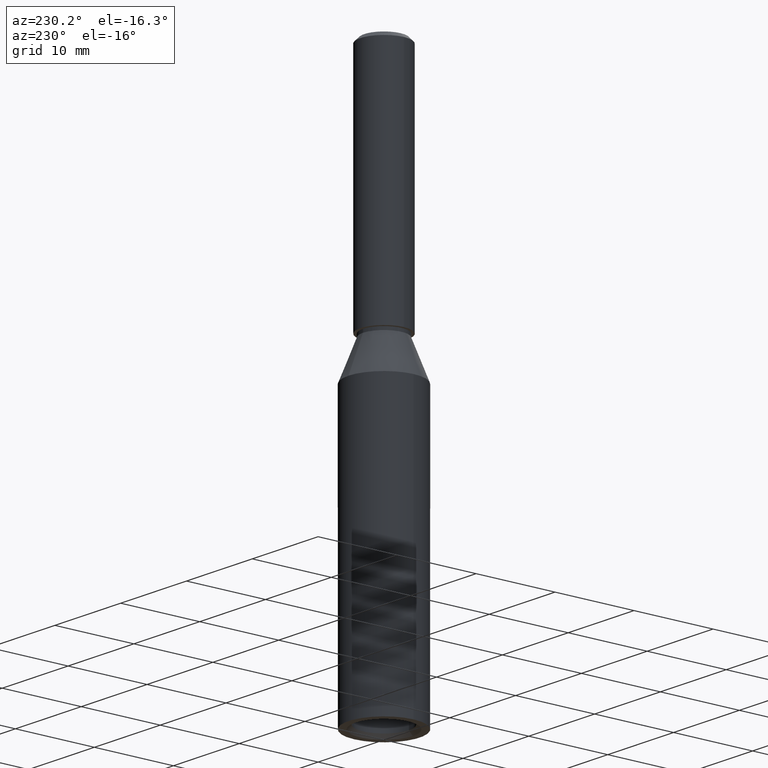
[diagram: clean part render]
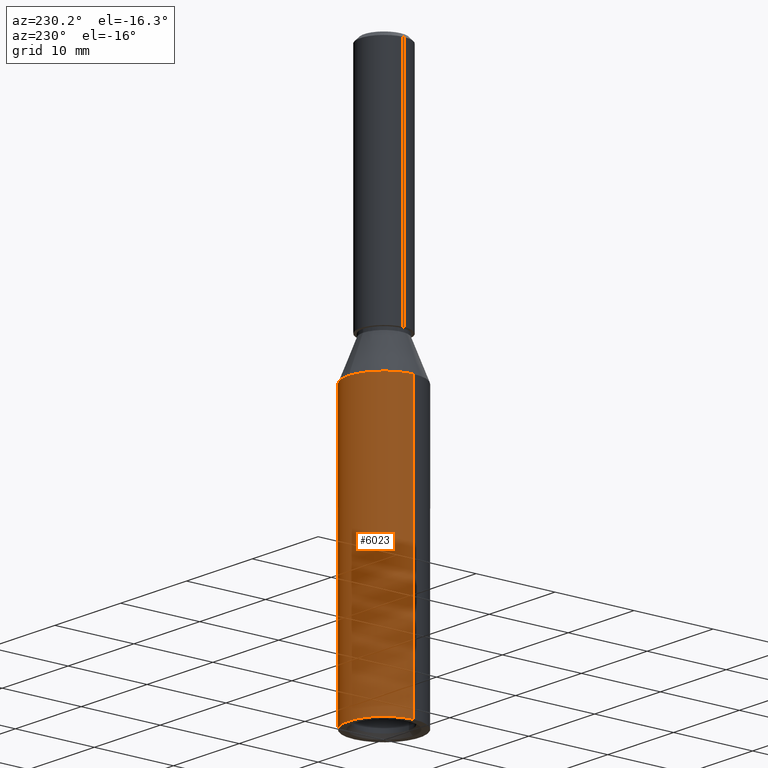
[diagram: same view with one face highlighted and labeled with its STEP entity id]
A machine part, auxiliary view. The second image highlights one B-rep face of the part: STEP entity #6023.
In plain terms, the highlighted cylindrical surface (partial cylindrical patch) has radius 4.5 mm, axis along (-0, -0, -1).
Its self-contained STEP definition (entity closure, byte-faithful):
#418 = AXIS2_PLACEMENT_3D ( 'NONE', #12057, #7922, #12010 ) ;
#1575 = VECTOR ( 'NONE', #8150, 1000.000000000000000 ) ;
#1689 = ORIENTED_EDGE ( 'NONE', *, *, #13122, .T. ) ;
#1979 = VERTEX_POINT ( 'NONE', #3412 ) ;
#2541 = CARTESIAN_POINT ( 'NONE',  ( 0.0000000000000000000, -6.887097141624851200E-017, 35.00000000000000000 ) ) ;
#2670 = CARTESIAN_POINT ( 'NONE',  ( -4.500000000000004400, 7.222237291452134400E-032, 35.00000000000000000 ) ) ;
#2675 = VERTEX_POINT ( 'NONE', #2670 ) ;
#2761 = CARTESIAN_POINT ( 'NONE',  ( 4.500000000000000000, 5.510910596163088600E-016, 40.00000000000000000 ) ) ;
#2798 = EDGE_CURVE ( 'NONE', #2675, #1979, #9990, .T. ) ;
#3159 = CARTESIAN_POINT ( 'NONE',  ( 0.0000000000000000000, 0.0000000000000000000, 0.0000000000000000000 ) ) ;
#3319 = ORIENTED_EDGE ( 'NONE', *, *, #2798, .T. ) ;
#3335 = VERTEX_POINT ( 'NONE', #3401 ) ;
#3401 = CARTESIAN_POINT ( 'NONE',  ( 4.500000000000000000, 5.510910596163088600E-016, 0.0000000000000000000 ) ) ;
#3412 = CARTESIAN_POINT ( 'NONE',  ( 0.0000000000000000000, 4.500000000000004400, 35.00000000000000000 ) ) ;
#3854 = DIRECTION ( 'NONE',  ( -1.000000000000000000, 0.0000000000000000000, 0.0000000000000000000 ) ) ;
#4353 = DIRECTION ( 'NONE',  ( 0.0000000000000000000, 0.0000000000000000000, 1.000000000000000000 ) ) ;
#4918 = CARTESIAN_POINT ( 'NONE',  ( -4.500000000000000000, 0.0000000000000000000, 40.00000000000000000 ) ) ;
#5489 = AXIS2_PLACEMENT_3D ( 'NONE', #3159, #4353, #6735 ) ;
#5702 = LINE ( 'NONE', #4918, #10813 ) ;
#5880 = CARTESIAN_POINT ( 'NONE',  ( -4.500000000000000000, 0.0000000000000000000, 0.0000000000000000000 ) ) ;
#6023 = ADVANCED_FACE ( 'NONE', ( #11046 ), #11388, .T. ) ;
#6649 = ORIENTED_EDGE ( 'NONE', *, *, #12381, .T. ) ;
#6674 = ORIENTED_EDGE ( 'NONE', *, *, #13358, .T. ) ;
#6735 = DIRECTION ( 'NONE',  ( 1.000000000000000000, 0.0000000000000000000, 0.0000000000000000000 ) ) ;
#7370 = CIRCLE ( 'NONE', #8835, 4.500000000000004400 ) ;
#7405 = VERTEX_POINT ( 'NONE', #5880 ) ;
#7662 = DIRECTION ( 'NONE',  ( -0.0000000000000000000, 1.967742040464242900E-018, -1.000000000000000000 ) ) ;
#7922 = DIRECTION ( 'NONE',  ( -0.0000000000000000000, 1.967742040464242900E-018, -1.000000000000000000 ) ) ;
#8150 = DIRECTION ( 'NONE',  ( -0.0000000000000000000, -0.0000000000000000000, -1.000000000000000000 ) ) ;
#8669 = LINE ( 'NONE', #2761, #1575 ) ;
#8835 = AXIS2_PLACEMENT_3D ( 'NONE', #2541, #7662, #10832 ) ;
#9990 = CIRCLE ( 'NONE', #418, 4.500000000000004400 ) ;
#10239 = EDGE_LOOP ( 'NONE', ( #3319, #1689, #6649, #6674, #11698 ) ) ;
#10813 = VECTOR ( 'NONE', #11171, 1000.000000000000000 ) ;
#10832 = DIRECTION ( 'NONE',  ( 0.0000000000000000000, 1.000000000000000000, 0.0000000000000000000 ) ) ;
#10908 = CARTESIAN_POINT ( 'NONE',  ( 4.500000000000004400, 5.510910596163095500E-016, 35.00000000000000000 ) ) ;
#11046 = FACE_OUTER_BOUND ( 'NONE', #10239, .T. ) ;
#11171 = DIRECTION ( 'NONE',  ( -0.0000000000000000000, -0.0000000000000000000, -1.000000000000000000 ) ) ;
#11173 = CARTESIAN_POINT ( 'NONE',  ( 0.0000000000000000000, 0.0000000000000000000, 40.00000000000000000 ) ) ;
#11388 = CYLINDRICAL_SURFACE ( 'NONE', #12545, 4.500000000000000000 ) ;
#11483 = VERTEX_POINT ( 'NONE', #10908 ) ;
#11633 = CIRCLE ( 'NONE', #5489, 4.500000000000000000 ) ;
#11698 = ORIENTED_EDGE ( 'NONE', *, *, #12571, .F. ) ;
#12010 = DIRECTION ( 'NONE',  ( 0.0000000000000000000, 1.000000000000000000, 0.0000000000000000000 ) ) ;
#12057 = CARTESIAN_POINT ( 'NONE',  ( 0.0000000000000000000, -6.887097141624851200E-017, 35.00000000000000000 ) ) ;
#12381 = EDGE_CURVE ( 'NONE', #11483, #3335, #8669, .T. ) ;
#12545 = AXIS2_PLACEMENT_3D ( 'NONE', #11173, #13208, #3854 ) ;
#12571 = EDGE_CURVE ( 'NONE', #2675, #7405, #5702, .T. ) ;
#13122 = EDGE_CURVE ( 'NONE', #1979, #11483, #7370, .T. ) ;
#13208 = DIRECTION ( 'NONE',  ( -0.0000000000000000000, -0.0000000000000000000, -1.000000000000000000 ) ) ;
#13358 = EDGE_CURVE ( 'NONE', #3335, #7405, #11633, .T. ) ;